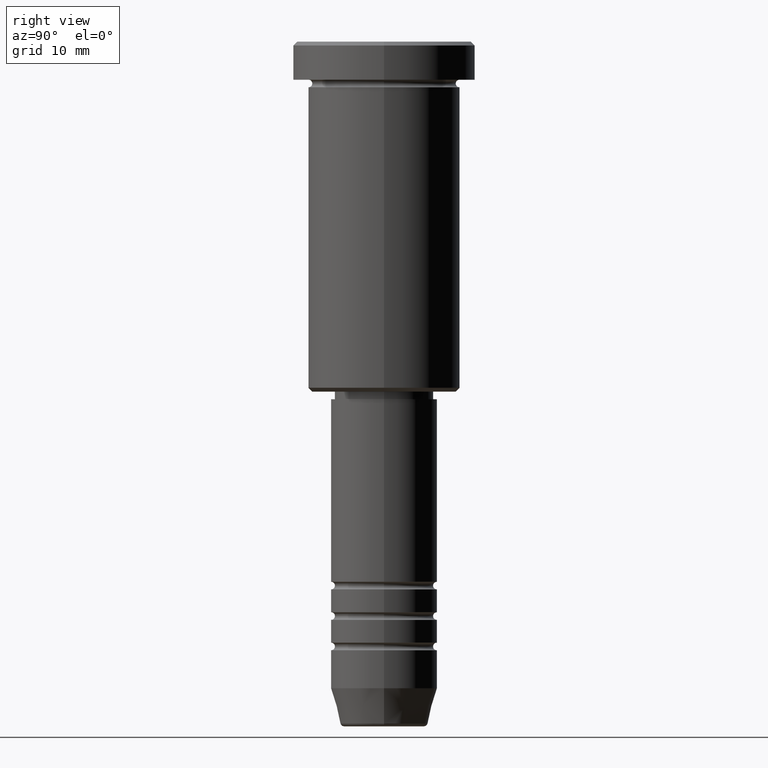
[diagram: clean part render]
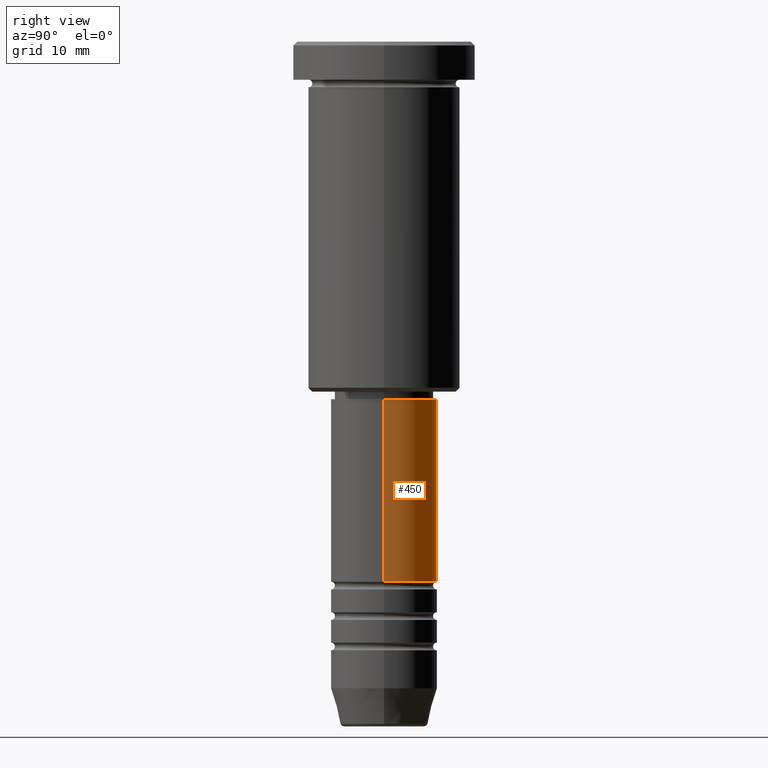
[diagram: same view with one face highlighted and labeled with its STEP entity id]
A machine part, right view. The second image highlights one B-rep face of the part: STEP entity #450.
In plain terms, the highlighted cylindrical surface (partial cylindrical patch) has radius 7 mm, axis along (-0, -0, 1).
Its self-contained STEP definition (entity closure, byte-faithful):
#18 = VERTEX_POINT ( 'NONE', #698 ) ;
#28 = CARTESIAN_POINT ( 'NONE',  ( 0.000000000000000000, 0.000000000000000000, -70.99999999999998579 ) ) ;
#34 = CARTESIAN_POINT ( 'NONE',  ( 0.000000000000000000, 0.000000000000000000, -47.00000000000000000 ) ) ;
#61 = DIRECTION ( 'NONE',  ( 1.000000000000000000, 0.000000000000000000, 0.000000000000000000 ) ) ;
#114 = ORIENTED_EDGE ( 'NONE', *, *, #609, .F. ) ;
#118 = DIRECTION ( 'NONE',  ( 1.000000000000000000, 0.000000000000000000, 0.000000000000000000 ) ) ;
#148 = VECTOR ( 'NONE', #179, 1000.000000000000000 ) ;
#174 = ORIENTED_EDGE ( 'NONE', *, *, #953, .T. ) ;
#179 = DIRECTION ( 'NONE',  ( -0.000000000000000000, -0.000000000000000000, 1.000000000000000000 ) ) ;
#186 = VECTOR ( 'NONE', #188, 1000.000000000000000 ) ;
#188 = DIRECTION ( 'NONE',  ( -0.000000000000000000, -0.000000000000000000, 1.000000000000000000 ) ) ;
#213 = VERTEX_POINT ( 'NONE', #1104 ) ;
#225 = EDGE_CURVE ( 'NONE', #18, #213, #584, .T. ) ;
#260 = DIRECTION ( 'NONE',  ( 1.000000000000000000, 0.000000000000000000, 0.000000000000000000 ) ) ;
#311 = CIRCLE ( 'NONE', #791, 7.000000000000000888 ) ;
#364 = LINE ( 'NONE', #1176, #148 ) ;
#420 = CYLINDRICAL_SURFACE ( 'NONE', #1079, 7.000000000000000888 ) ;
#450 = ADVANCED_FACE ( 'NONE', ( #778 ), #420, .T. ) ;
#584 = CIRCLE ( 'NONE', #1096, 7.000000000000000888 ) ;
#592 = EDGE_LOOP ( 'NONE', ( #825, #174, #776, #114 ) ) ;
#609 = EDGE_CURVE ( 'NONE', #18, #921, #639, .T. ) ;
#632 = CARTESIAN_POINT ( 'NONE',  ( 7.000000000000000888, 0.000000000000000000, -47.00000000000000000 ) ) ;
#639 = LINE ( 'NONE', #1173, #186 ) ;
#698 = CARTESIAN_POINT ( 'NONE',  ( 7.000000000000000888, 0.000000000000000000, -70.99999999999998579 ) ) ;
#761 = DIRECTION ( 'NONE',  ( -0.000000000000000000, -0.000000000000000000, 1.000000000000000000 ) ) ;
#776 = ORIENTED_EDGE ( 'NONE', *, *, #898, .F. ) ;
#778 = FACE_OUTER_BOUND ( 'NONE', #592, .T. ) ;
#785 = CARTESIAN_POINT ( 'NONE',  ( 0.000000000000000000, 0.000000000000000000, 0.000000000000000000 ) ) ;
#791 = AXIS2_PLACEMENT_3D ( 'NONE', #34, #761, #260 ) ;
#825 = ORIENTED_EDGE ( 'NONE', *, *, #225, .T. ) ;
#860 = VERTEX_POINT ( 'NONE', #1158 ) ;
#898 = EDGE_CURVE ( 'NONE', #921, #860, #311, .T. ) ;
#921 = VERTEX_POINT ( 'NONE', #632 ) ;
#953 = EDGE_CURVE ( 'NONE', #213, #860, #364, .T. ) ;
#968 = DIRECTION ( 'NONE',  ( -0.000000000000000000, -0.000000000000000000, 1.000000000000000000 ) ) ;
#1035 = DIRECTION ( 'NONE',  ( -0.000000000000000000, -0.000000000000000000, 1.000000000000000000 ) ) ;
#1079 = AXIS2_PLACEMENT_3D ( 'NONE', #785, #968, #61 ) ;
#1096 = AXIS2_PLACEMENT_3D ( 'NONE', #28, #1035, #118 ) ;
#1104 = CARTESIAN_POINT ( 'NONE',  ( -7.000000000000000888, 8.572527594031474176E-16, -70.99999999999998579 ) ) ;
#1158 = CARTESIAN_POINT ( 'NONE',  ( -7.000000000000000888, 8.572527594031474176E-16, -47.00000000000000000 ) ) ;
#1173 = CARTESIAN_POINT ( 'NONE',  ( 7.000000000000000888, 0.000000000000000000, 0.000000000000000000 ) ) ;
#1176 = CARTESIAN_POINT ( 'NONE',  ( -7.000000000000000888, 8.572527594031474176E-16, 0.000000000000000000 ) ) ;